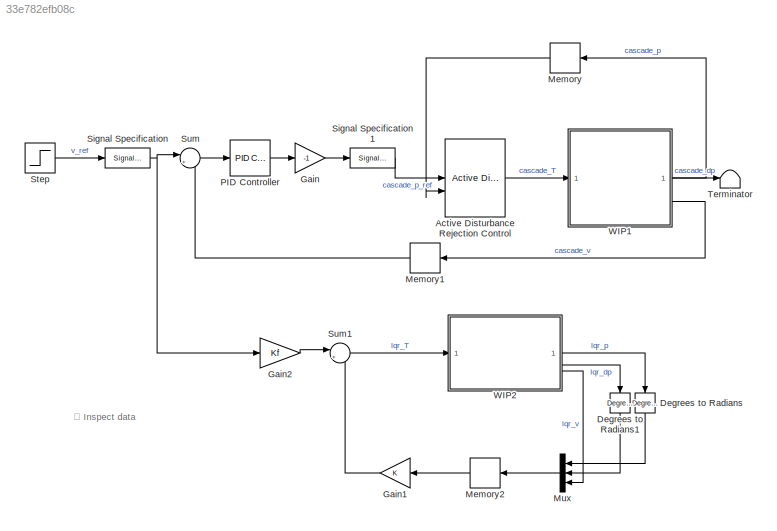
MODEL slx_33e782efb08c
KIND model
CONFIG AbsTol = 1e-3
CONFIG EnableMultiTasking = off
CONFIG FixedStep = auto
CONFIG MaxStep = 1e-3
CONFIG MinStep = auto
CONFIG RelTol = 1e-3
CONFIG SampleTimeConstraint = Unconstrained
CONFIG SolverName = ode23t
CONFIG StartTime = 0.0
CONFIG StopTime = 10.0
BLOCK [Reference] Active Disturbance Rejection Control  REF=slctrl_adaptive/Active Disturbance Rejection Control
  LibrarySourceBlock = slctrlblks/Adaptive Control/Active Disturbance Rejection Control
  SourceBlock = slctrl_adaptive/Active Disturbance Rejection Control
  SourceType = Active Disturbance Rejection Control (ADRC)
BLOCK [Reference] Degrees to Radians  REF=simulink_extras/Transformations/Degrees to
Radians
  NameLocation = left
  SourceBlock = simulink_extras/Transformations/Degrees to\nRadians
  SourceType = DegreesToRadians
BLOCK [Reference] Degrees to Radians1  REF=simulink_extras/Transformations/Degrees to
Radians
  NameLocation = left
  SourceBlock = simulink_extras/Transformations/Degrees to\nRadians
  SourceType = DegreesToRadians
BLOCK [Gain] Gain
  Gain = -1
BLOCK [Gain] Gain1
  Gain = K
  Multiplication = Matrix(K*u)
BLOCK [Gain] Gain2
  Gain = Kf
BLOCK [Memory] Memory
  InheritSampleTime = on
  InitialCondition = p0
  LinearizeAsDelay = on
  LinearizeMemory = on
BLOCK [Memory] Memory1
  InheritSampleTime = on
  LinearizeAsDelay = on
  LinearizeMemory = on
BLOCK [Memory] Memory2
  InheritSampleTime = on
  InitialCondition = [p0*pi/180 0 0]
  LinearizeAsDelay = on
  LinearizeMemory = on
BLOCK [Mux] Mux
  DisplayOption = bar
  Inputs = 3
BLOCK [Reference] PID Controller  REF=slpidlib/PID Controller
  LibrarySourceBlock = simulink/Continuous/PID Controller
  SourceBlock = slpidlib/PID Controller
  SourceType = PID 1dof
BLOCK [SignalSpecification] Signal Specification
  Unit = m/s
BLOCK [SignalSpecification] Signal Specification1
  Unit = deg
BLOCK [Step] Step
  SampleTime = 0
BLOCK [Sum] Sum
  Inputs = |+-
BLOCK [Sum] Sum1
  Inputs = |+-
BLOCK [Terminator] Terminator
BLOCK [SubSystem] WIP1
  ReferencedSubsystem = WIP
BLOCK [SubSystem] WIP2
  ReferencedSubsystem = WIP
ANNOTATION (root): 📈 Inspect data
LINE Active Disturbance Rejection Control:1 -> WIP1:1
LINE Degrees to Radians1:1 -> Mux:2
LINE Degrees to Radians:1 -> Mux:1
LINE Gain1:1 -> Sum1:2
LINE Gain2:1 -> Sum1:1
LINE Gain:1 -> Signal Specification1:1
LINE Memory1:1 -> Sum:2
LINE Memory2:1 -> Gain1:1
LINE Memory:1 -> Active Disturbance Rejection Control:2
LINE Mux:1 -> Memory2:1
LINE PID Controller:1 -> Gain:1
LINE Signal Specification1:1 -> Active Disturbance Rejection Control:1
NET Signal Specification:1 -> Gain2:1, Sum:1
LINE Step:1 -> Signal Specification:1
LINE Sum1:1 -> WIP2:1
LINE Sum:1 -> PID Controller:1
LINE WIP1:1 -> Memory:1
LINE WIP1:2 -> Terminator:1
LINE WIP1:3 -> Memory1:1
LINE WIP2:1 -> Degrees to Radians:1
LINE WIP2:2 -> Degrees to Radians1:1
LINE WIP2:3 -> Mux:3
note: NET lines group one-source signal fan-out (src -> all destinations, sorted); 1:1 wires keep LINE
